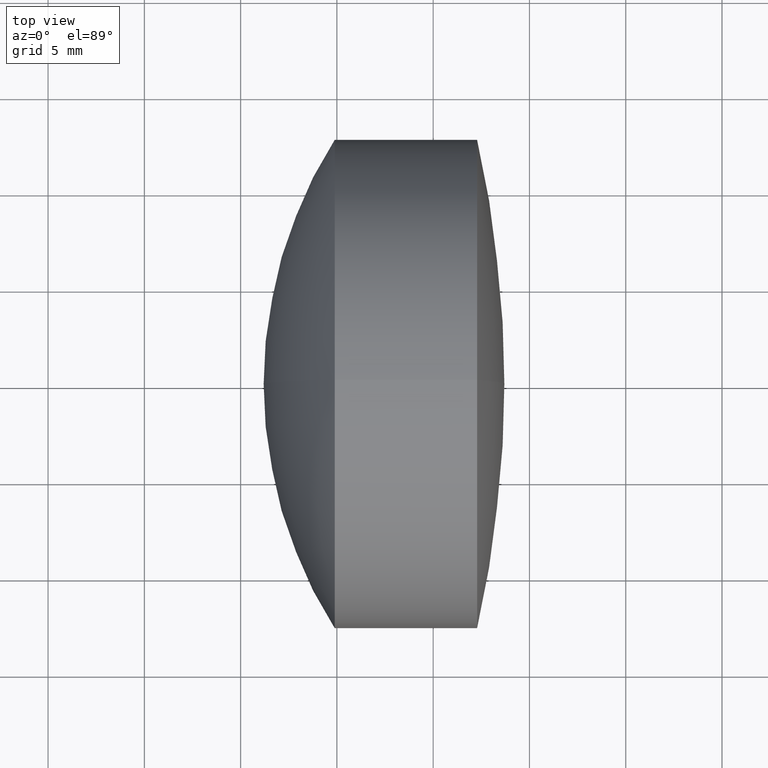
[diagram: clean part render]
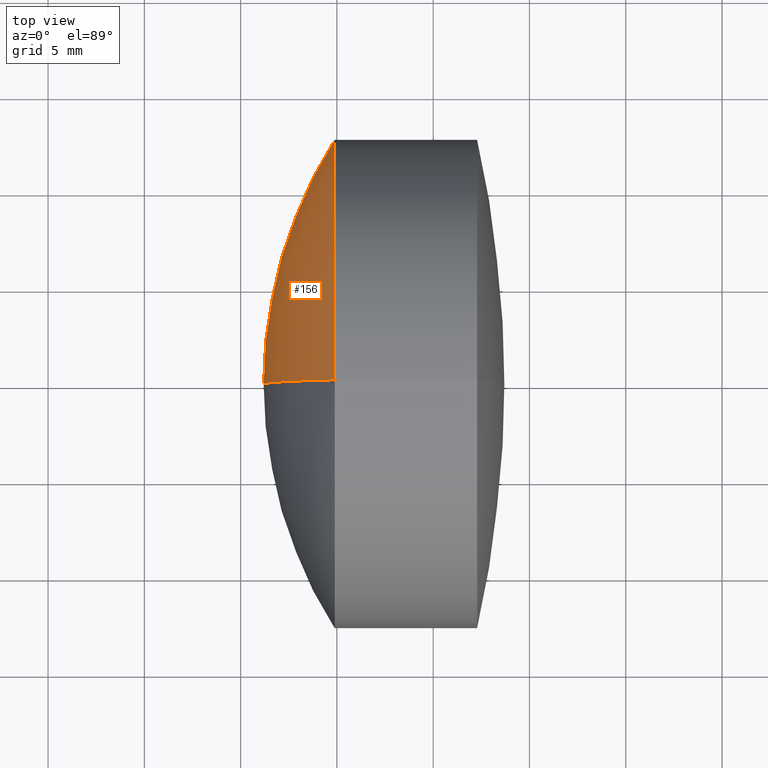
[diagram: same view with one face highlighted and labeled with its STEP entity id]
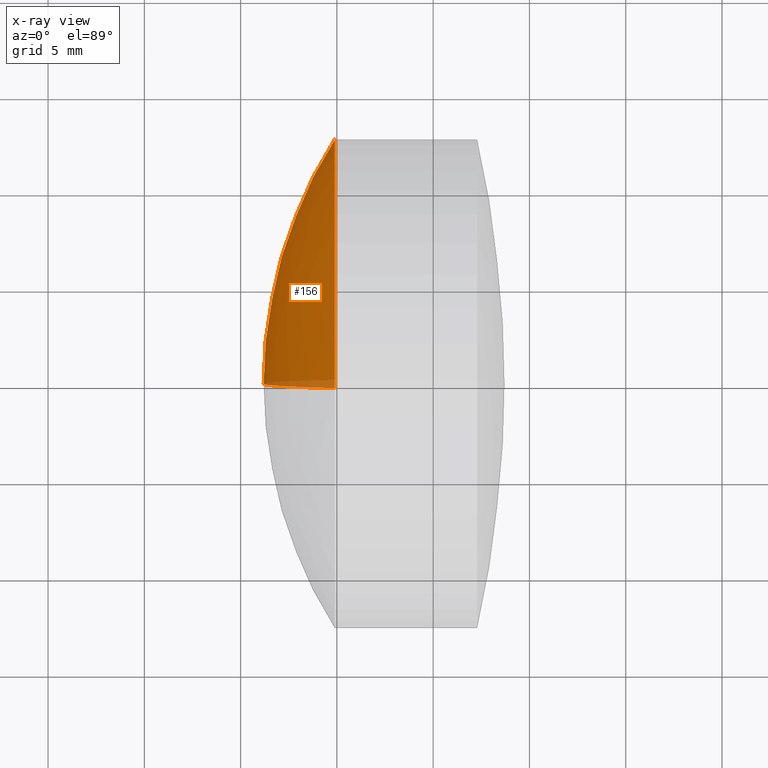
[diagram: x-ray of the same camera — body ghosted, the highlighted face saturated]
A machine part, top view. The second image highlights one B-rep face of the part: STEP entity #156.
The next image is the same camera in x-ray: the body ghosted, the highlighted face saturated — about 3% of this face is hidden behind the body in this view.
In plain terms, the highlighted spherical surface has radius 23.7 mm.
Its self-contained STEP definition (entity closure, byte-faithful):
#10 = VERTEX_POINT ( 'NONE', #301 ) ;
#12 = SPHERICAL_SURFACE ( 'NONE', #170, 23.69999999999999200 ) ;
#28 = FACE_OUTER_BOUND ( 'NONE', #343, .T. ) ;
#31 = EDGE_CURVE ( 'NONE', #10, #275, #182, .T. ) ;
#43 = CARTESIAN_POINT ( 'NONE',  ( 224.8858483071701900, 1.555301434917138000E-015, -12.69999999999999800 ) ) ;
#76 = CARTESIAN_POINT ( 'NONE',  ( 244.8958458084194100, 0.0000000000000000000, -2.857671190244262000E-015 ) ) ;
#78 = EDGE_CURVE ( 'NONE', #275, #87, #216, .T. ) ;
#87 = VERTEX_POINT ( 'NONE', #123 ) ;
#92 = DIRECTION ( 'NONE',  ( 0.0000000000000000000, 0.0000000000000000000, 1.000000000000000000 ) ) ;
#95 = DIRECTION ( 'NONE',  ( 0.0000000000000000000, -1.224646799147353000E-016, 1.000000000000000000 ) ) ;
#106 = CIRCLE ( 'NONE', #121, 23.69999999999999200 ) ;
#112 = ORIENTED_EDGE ( 'NONE', *, *, #31, .T. ) ;
#121 = AXIS2_PLACEMENT_3D ( 'NONE', #144, #176, #268 ) ;
#123 = CARTESIAN_POINT ( 'NONE',  ( 221.1958458084194200, 0.0000000000000000000, -1.406464733254649100E-015 ) ) ;
#127 = CARTESIAN_POINT ( 'NONE',  ( 244.8958458084194100, 0.0000000000000000000, -2.857671190244262000E-015 ) ) ;
#144 = CARTESIAN_POINT ( 'NONE',  ( 244.8958458084194100, 0.0000000000000000000, -2.857671190244262000E-015 ) ) ;
#156 = ADVANCED_FACE ( 'NONE', ( #28 ), #12, .T. ) ;
#167 = CARTESIAN_POINT ( 'NONE',  ( 224.8858483071701900, 0.0000000000000000000, 0.0000000000000000000 ) ) ;
#170 = AXIS2_PLACEMENT_3D ( 'NONE', #127, #225, #329 ) ;
#176 = DIRECTION ( 'NONE',  ( 0.0000000000000000000, -1.000000000000000000, 0.0000000000000000000 ) ) ;
#177 = ORIENTED_EDGE ( 'NONE', *, *, #78, .T. ) ;
#178 = DIRECTION ( 'NONE',  ( -0.0000000000000000000, 1.000000000000000000, 1.224646799147353200E-016 ) ) ;
#182 = CIRCLE ( 'NONE', #278, 12.69999999999999600 ) ;
#216 = CIRCLE ( 'NONE', #247, 23.69999999999999200 ) ;
#225 = DIRECTION ( 'NONE',  ( 0.0000000000000000000, 1.000000000000000000, 0.0000000000000000000 ) ) ;
#247 = AXIS2_PLACEMENT_3D ( 'NONE', #76, #178, #95 ) ;
#257 = ORIENTED_EDGE ( 'NONE', *, *, #308, .F. ) ;
#268 = DIRECTION ( 'NONE',  ( 0.0000000000000000000, 0.0000000000000000000, -1.000000000000000000 ) ) ;
#275 = VERTEX_POINT ( 'NONE', #43 ) ;
#278 = AXIS2_PLACEMENT_3D ( 'NONE', #167, #282, #92 ) ;
#282 = DIRECTION ( 'NONE',  ( -1.000000000000000000, -0.0000000000000000000, -0.0000000000000000000 ) ) ;
#301 = CARTESIAN_POINT ( 'NONE',  ( 224.8858483071701900, 0.0000000000000000000, 12.69999999999999400 ) ) ;
#308 = EDGE_CURVE ( 'NONE', #10, #87, #106, .T. ) ;
#329 = DIRECTION ( 'NONE',  ( 0.0000000000000000000, 0.0000000000000000000, 1.000000000000000000 ) ) ;
#343 = EDGE_LOOP ( 'NONE', ( #112, #177, #257 ) ) ;